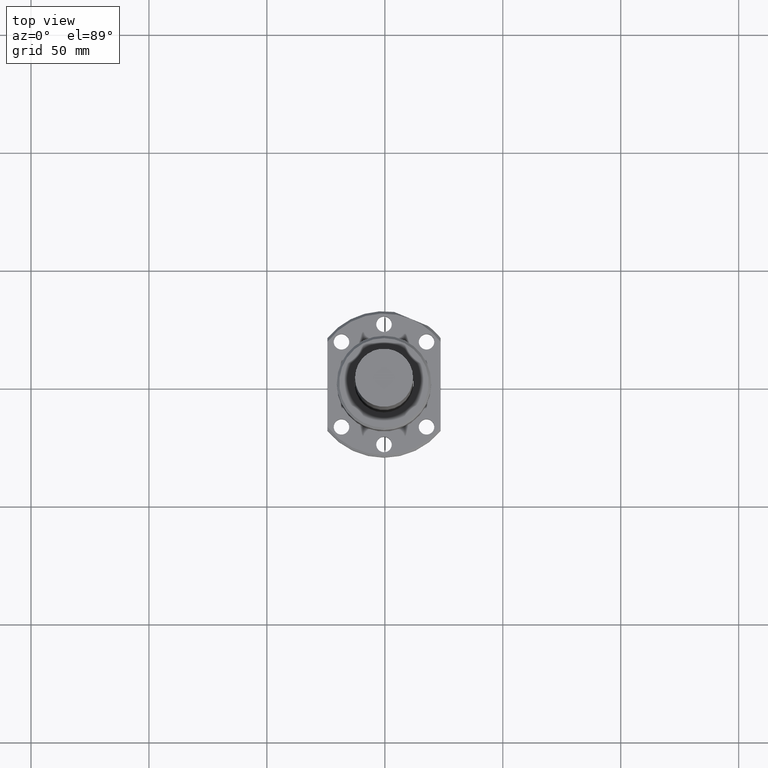
[diagram: clean part render]
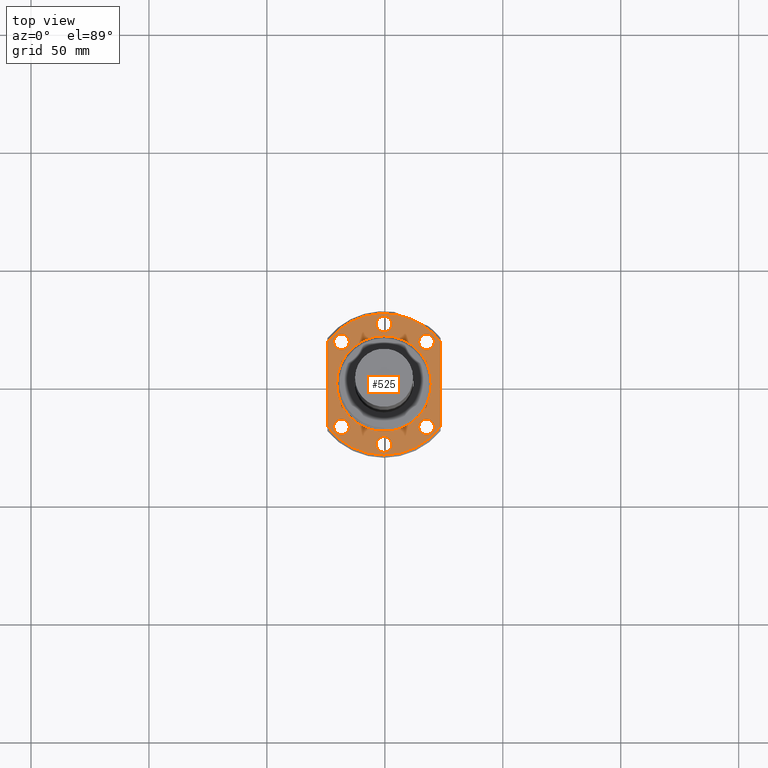
[diagram: same view with one face highlighted and labeled with its STEP entity id]
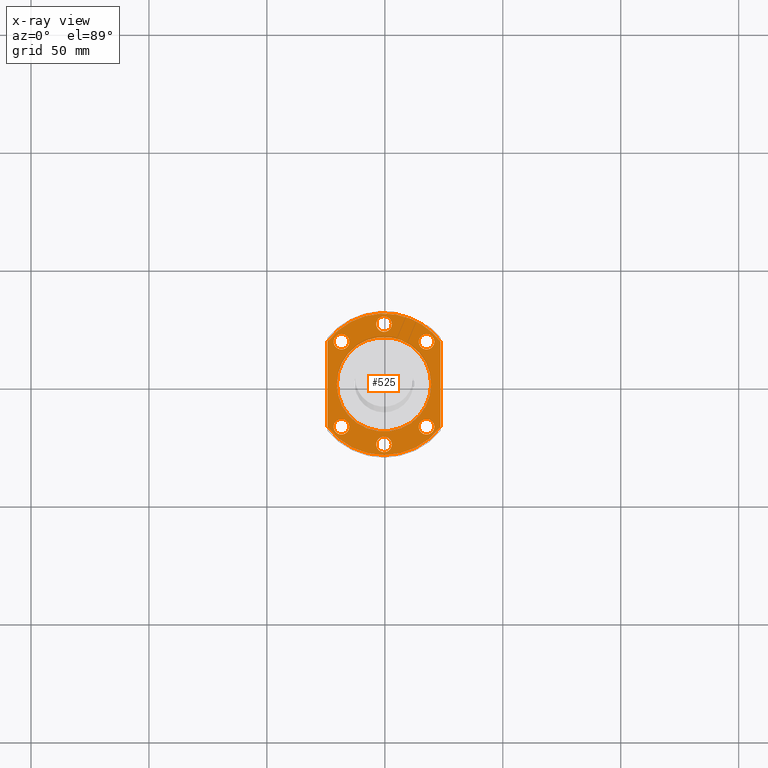
[diagram: x-ray of the same camera — body ghosted, the highlighted face saturated]
A machine part, top view. The second image highlights one B-rep face of the part: STEP entity #525.
The next image is the same camera in x-ray: the body ghosted, the highlighted face saturated — about 0% of this face is hidden behind the body in this view.
In plain terms, the highlighted planar face has unit normal (0, 0, -1).
Its self-contained STEP definition (entity closure, byte-faithful):
#17 = VERTEX_POINT ( 'NONE', #889 ) ;
#60 = EDGE_LOOP ( 'NONE', ( #1564, #922 ) ) ;
#104 = ORIENTED_EDGE ( 'NONE', *, *, #1741, .F. ) ;
#124 = VERTEX_POINT ( 'NONE', #697 ) ;
#133 = VERTEX_POINT ( 'NONE', #668 ) ;
#144 = CIRCLE ( 'NONE', #1759, 3.299987790000005200 ) ;
#148 = CIRCLE ( 'NONE', #165, 19.99999305000000000 ) ;
#153 = CIRCLE ( 'NONE', #1604, 3.299987789999999900 ) ;
#156 = DIRECTION ( 'NONE',  ( 1.000000000000000000, 0.0000000000000000000, 0.0000000000000000000 ) ) ;
#158 = DIRECTION ( 'NONE',  ( -0.0000000000000000000, 0.0000000000000000000, -1.000000000000000000 ) ) ;
#159 = CARTESIAN_POINT ( 'NONE',  ( 0.0000000000000000000, 0.0000000000000000000, -15.99999399999999700 ) ) ;
#165 = AXIS2_PLACEMENT_3D ( 'NONE', #831, #830, #829 ) ;
#180 = CIRCLE ( 'NONE', #1517, 3.299987790000000300 ) ;
#183 = AXIS2_PLACEMENT_3D ( 'NONE', #1646, #1645, #1642 ) ;
#196 = CIRCLE ( 'NONE', #931, 3.299987790000000300 ) ;
#198 = AXIS2_PLACEMENT_3D ( 'NONE', #1464, #1460, #1456 ) ;
#207 = VERTEX_POINT ( 'NONE', #564 ) ;
#235 = VERTEX_POINT ( 'NONE', #470 ) ;
#251 = CIRCLE ( 'NONE', #923, 3.299987790000005200 ) ;
#260 = CIRCLE ( 'NONE', #198, 3.300003049999999900 ) ;
#263 = CIRCLE ( 'NONE', #541, 29.99999980000003700 ) ;
#266 = FACE_BOUND ( 'NONE', #844, .T. ) ;
#276 = CIRCLE ( 'NONE', #1782, 29.99999980000003700 ) ;
#282 = ORIENTED_EDGE ( 'NONE', *, *, #1364, .F. ) ;
#294 = EDGE_CURVE ( 'NONE', #207, #133, #276, .T. ) ;
#320 = DIRECTION ( 'NONE',  ( 1.000000000000000000, 0.0000000000000000000, 0.0000000000000000000 ) ) ;
#331 = DIRECTION ( 'NONE',  ( -0.0000000000000000000, 0.0000000000000000000, -1.000000000000000000 ) ) ;
#347 = EDGE_LOOP ( 'NONE', ( #1138, #968 ) ) ;
#348 = AXIS2_PLACEMENT_3D ( 'NONE', #1425, #1424, #1412 ) ;
#367 = EDGE_CURVE ( 'NONE', #124, #1576, #1851, .T. ) ;
#368 = ORIENTED_EDGE ( 'NONE', *, *, #1535, .F. ) ;
#375 = EDGE_CURVE ( 'NONE', #133, #1576, #263, .T. ) ;
#389 = CARTESIAN_POINT ( 'NONE',  ( 0.0000000000000000000, 0.0000000000000000000, -15.99999399999996200 ) ) ;
#396 = EDGE_CURVE ( 'NONE', #834, #452, #251, .T. ) ;
#401 = EDGE_CURVE ( 'NONE', #207, #811, #1700, .T. ) ;
#418 = AXIS2_PLACEMENT_3D ( 'NONE', #1727, #1722, #1720 ) ;
#433 = FACE_BOUND ( 'NONE', #1436, .T. ) ;
#452 = VERTEX_POINT ( 'NONE', #1527 ) ;
#455 = ORIENTED_EDGE ( 'NONE', *, *, #613, .F. ) ;
#468 = VERTEX_POINT ( 'NONE', #1521 ) ;
#470 = CARTESIAN_POINT ( 'NONE',  ( 19.99999305000000000, 0.0000000000000000000, -15.99999399999999700 ) ) ;
#474 = VERTEX_POINT ( 'NONE', #1518 ) ;
#479 = CARTESIAN_POINT ( 'NONE',  ( 14.73124670999999900, 18.03121900000000000, -15.99999399999999700 ) ) ;
#497 = VECTOR ( 'NONE', #1838, 1000.000000000000000 ) ;
#501 = VERTEX_POINT ( 'NONE', #1485 ) ;
#506 = FACE_BOUND ( 'NONE', #900, .T. ) ;
#512 = EDGE_CURVE ( 'NONE', #824, #732, #260, .T. ) ;
#525 = ADVANCED_FACE ( 'NONE', ( #266, #433, #506, #582, #620, #701, #736, #779 ), #1430, .F. ) ;
#541 = AXIS2_PLACEMENT_3D ( 'NONE', #1807, #1804, #1800 ) ;
#554 = EDGE_CURVE ( 'NONE', #1638, #474, #196, .T. ) ;
#564 = CARTESIAN_POINT ( 'NONE',  ( -23.99999999999999600, 17.99999966666669600, -15.99999399999998300 ) ) ;
#582 = FACE_BOUND ( 'NONE', #583, .T. ) ;
#583 = EDGE_LOOP ( 'NONE', ( #682, #1422 ) ) ;
#613 = EDGE_CURVE ( 'NONE', #1647, #1127, #180, .T. ) ;
#620 = FACE_BOUND ( 'NONE', #1112, .T. ) ;
#668 = CARTESIAN_POINT ( 'NONE',  ( -11.48050294420043300, 27.71638587827104800, -15.99999389991637400 ) ) ;
#682 = ORIENTED_EDGE ( 'NONE', *, *, #554, .F. ) ;
#697 = CARTESIAN_POINT ( 'NONE',  ( 23.99999999999999600, -17.99999966778961600, -15.99999399932622700 ) ) ;
#701 = FACE_BOUND ( 'NONE', #60, .T. ) ;
#705 = CARTESIAN_POINT ( 'NONE',  ( 3.300002789999999700, 25.50000000000000400, -15.99999399999999700 ) ) ;
#726 = EDGE_CURVE ( 'NONE', #942, #17, #153, .T. ) ;
#732 = VERTEX_POINT ( 'NONE', #1026 ) ;
#736 = FACE_BOUND ( 'NONE', #347, .T. ) ;
#747 = ORIENTED_EDGE ( 'NONE', *, *, #294, .T. ) ;
#773 = EDGE_CURVE ( 'NONE', #468, #501, #144, .T. ) ;
#779 = FACE_OUTER_BOUND ( 'NONE', #1405, .T. ) ;
#792 = AXIS2_PLACEMENT_3D ( 'NONE', #1772, #1768, #1766 ) ;
#811 = VERTEX_POINT ( 'NONE', #914 ) ;
#824 = VERTEX_POINT ( 'NONE', #911 ) ;
#829 = DIRECTION ( 'NONE',  ( 1.000000000000000000, 0.0000000000000000000, 0.0000000000000000000 ) ) ;
#830 = DIRECTION ( 'NONE',  ( -0.0000000000000000000, 0.0000000000000000000, -1.000000000000000000 ) ) ;
#831 = CARTESIAN_POINT ( 'NONE',  ( 0.0000000000000000000, 0.0000000000000000000, -15.99999399999999700 ) ) ;
#834 = VERTEX_POINT ( 'NONE', #863 ) ;
#844 = EDGE_LOOP ( 'NONE', ( #282, #1531 ) ) ;
#850 = EDGE_CURVE ( 'NONE', #1540, #235, #148, .T. ) ;
#863 = CARTESIAN_POINT ( 'NONE',  ( -14.73121720999999900, -18.03122000000000100, -15.99999399999999700 ) ) ;
#868 = AXIS2_PLACEMENT_3D ( 'NONE', #1826, #1815, #1813 ) ;
#889 = CARTESIAN_POINT ( 'NONE',  ( -3.299972790000000000, 25.50000000000000400, -15.99999399999999700 ) ) ;
#900 = EDGE_LOOP ( 'NONE', ( #1407, #1409 ) ) ;
#911 = CARTESIAN_POINT ( 'NONE',  ( 3.300003049999999900, -25.50000000000000400, -15.99999399999999700 ) ) ;
#914 = CARTESIAN_POINT ( 'NONE',  ( -23.99999999999999600, -17.99999966666669200, -15.99999399999998300 ) ) ;
#921 = AXIS2_PLACEMENT_3D ( 'NONE', #1795, #1794, #1791 ) ;
#922 = ORIENTED_EDGE ( 'NONE', *, *, #1789, .F. ) ;
#923 = AXIS2_PLACEMENT_3D ( 'NONE', #1783, #1710, #1702 ) ;
#931 = AXIS2_PLACEMENT_3D ( 'NONE', #1388, #1338, #1335 ) ;
#942 = VERTEX_POINT ( 'NONE', #705 ) ;
#944 = DIRECTION ( 'NONE',  ( 1.000000000000000000, 0.0000000000000000000, 0.0000000000000000000 ) ) ;
#945 = DIRECTION ( 'NONE',  ( -0.0000000000000000000, 0.0000000000000000000, -1.000000000000000000 ) ) ;
#946 = AXIS2_PLACEMENT_3D ( 'NONE', #159, #158, #156 ) ;
#951 = CARTESIAN_POINT ( 'NONE',  ( -18.03120500000000300, 18.03121900000000000, -15.99999399999999700 ) ) ;
#968 = ORIENTED_EDGE ( 'NONE', *, *, #1818, .F. ) ;
#1015 = ORIENTED_EDGE ( 'NONE', *, *, #401, .F. ) ;
#1026 = CARTESIAN_POINT ( 'NONE',  ( -3.300003049999999900, -25.50000000000000400, -15.99999399999999700 ) ) ;
#1045 = DIRECTION ( 'NONE',  ( 1.000000000000000000, 0.0000000000000000000, 0.0000000000000000000 ) ) ;
#1048 = DIRECTION ( 'NONE',  ( -0.0000000000000000000, -0.0000000000000000000, -1.000000000000000000 ) ) ;
#1057 = CARTESIAN_POINT ( 'NONE',  ( 1.499999999991091800E-005, 25.50000000000000400, -15.99999399999999700 ) ) ;
#1068 = VECTOR ( 'NONE', #1684, 1000.000000000000000 ) ;
#1112 = EDGE_LOOP ( 'NONE', ( #455, #104 ) ) ;
#1126 = CIRCLE ( 'NONE', #1607, 3.299987790000005200 ) ;
#1127 = VERTEX_POINT ( 'NONE', #479 ) ;
#1138 = ORIENTED_EDGE ( 'NONE', *, *, #773, .F. ) ;
#1139 = ORIENTED_EDGE ( 'NONE', *, *, #1580, .F. ) ;
#1143 = CIRCLE ( 'NONE', #183, 3.299987790000000300 ) ;
#1153 = ORIENTED_EDGE ( 'NONE', *, *, #375, .T. ) ;
#1160 = CIRCLE ( 'NONE', #1788, 3.299987789999999900 ) ;
#1176 = CIRCLE ( 'NONE', #418, 29.99999980000003700 ) ;
#1249 = DIRECTION ( 'NONE',  ( 1.000000000000000000, 0.0000000000000000000, 0.0000000000000000000 ) ) ;
#1250 = DIRECTION ( 'NONE',  ( -0.0000000000000000000, 0.0000000000000000000, -1.000000000000000000 ) ) ;
#1278 = CARTESIAN_POINT ( 'NONE',  ( 18.03123450000000000, 18.03121900000000000, -15.99999399999999700 ) ) ;
#1287 = ORIENTED_EDGE ( 'NONE', *, *, #396, .F. ) ;
#1334 = CIRCLE ( 'NONE', #792, 3.299987790000000300 ) ;
#1335 = DIRECTION ( 'NONE',  ( 1.000000000000000000, 0.0000000000000000000, 0.0000000000000000000 ) ) ;
#1338 = DIRECTION ( 'NONE',  ( -0.0000000000000000000, 0.0000000000000000000, -1.000000000000000000 ) ) ;
#1343 = CIRCLE ( 'NONE', #921, 3.299987790000005200 ) ;
#1364 = EDGE_CURVE ( 'NONE', #235, #1540, #1515, .T. ) ;
#1366 = CIRCLE ( 'NONE', #868, 3.300003049999999900 ) ;
#1388 = CARTESIAN_POINT ( 'NONE',  ( 18.03123450000000000, -18.03122000000000100, -15.99999399999999700 ) ) ;
#1405 = EDGE_LOOP ( 'NONE', ( #1139, #1015, #747, #1153, #1453 ) ) ;
#1407 = ORIENTED_EDGE ( 'NONE', *, *, #512, .F. ) ;
#1409 = ORIENTED_EDGE ( 'NONE', *, *, #1514, .F. ) ;
#1412 = DIRECTION ( 'NONE',  ( 1.000000000000000000, 0.0000000000000000000, 0.0000000000000000000 ) ) ;
#1422 = ORIENTED_EDGE ( 'NONE', *, *, #1547, .F. ) ;
#1424 = DIRECTION ( 'NONE',  ( 0.0000000000000000000, 0.0000000000000000000, 1.000000000000000000 ) ) ;
#1425 = CARTESIAN_POINT ( 'NONE',  ( -24.00000000000000000, -30.35999979800000400, -15.99999399999999900 ) ) ;
#1430 = PLANE ( 'NONE',  #348 ) ;
#1436 = EDGE_LOOP ( 'NONE', ( #1287, #368 ) ) ;
#1453 = ORIENTED_EDGE ( 'NONE', *, *, #367, .F. ) ;
#1456 = DIRECTION ( 'NONE',  ( 1.000000000000000000, 0.0000000000000000000, 0.0000000000000000000 ) ) ;
#1460 = DIRECTION ( 'NONE',  ( -0.0000000000000000000, -0.0000000000000000000, -1.000000000000000000 ) ) ;
#1464 = CARTESIAN_POINT ( 'NONE',  ( 0.0000000000000000000, -25.50000000000000400, -15.99999399999999700 ) ) ;
#1485 = CARTESIAN_POINT ( 'NONE',  ( -21.33119279000001000, 18.03121900000000000, -15.99999399999999700 ) ) ;
#1514 = EDGE_CURVE ( 'NONE', #732, #824, #1366, .T. ) ;
#1515 = CIRCLE ( 'NONE', #946, 19.99999305000000000 ) ;
#1517 = AXIS2_PLACEMENT_3D ( 'NONE', #1278, #1250, #1249 ) ;
#1518 = CARTESIAN_POINT ( 'NONE',  ( 14.73124670999999900, -18.03122000000000100, -15.99999399999999700 ) ) ;
#1521 = CARTESIAN_POINT ( 'NONE',  ( -14.73121720999999900, 18.03121900000000000, -15.99999399999999700 ) ) ;
#1527 = CARTESIAN_POINT ( 'NONE',  ( -21.33119279000001000, -18.03122000000000100, -15.99999399999999700 ) ) ;
#1531 = ORIENTED_EDGE ( 'NONE', *, *, #850, .F. ) ;
#1535 = EDGE_CURVE ( 'NONE', #452, #834, #1343, .T. ) ;
#1540 = VERTEX_POINT ( 'NONE', #1784 ) ;
#1547 = EDGE_CURVE ( 'NONE', #474, #1638, #1334, .T. ) ;
#1564 = ORIENTED_EDGE ( 'NONE', *, *, #726, .F. ) ;
#1570 = DIRECTION ( 'NONE',  ( 1.000000000000000000, 0.0000000000000000000, 0.0000000000000000000 ) ) ;
#1572 = DIRECTION ( 'NONE',  ( -0.0000000000000000000, 0.0000000000000000000, -1.000000000000000000 ) ) ;
#1575 = CARTESIAN_POINT ( 'NONE',  ( -18.03120500000000300, 18.03121900000000000, -15.99999399999999700 ) ) ;
#1576 = VERTEX_POINT ( 'NONE', #1725 ) ;
#1580 = EDGE_CURVE ( 'NONE', #811, #124, #1176, .T. ) ;
#1602 = DIRECTION ( 'NONE',  ( 1.000000000000000000, 0.0000000000000000000, 0.0000000000000000000 ) ) ;
#1604 = AXIS2_PLACEMENT_3D ( 'NONE', #1057, #1048, #1045 ) ;
#1606 = DIRECTION ( 'NONE',  ( -0.0000000000000000000, -0.0000000000000000000, -1.000000000000000000 ) ) ;
#1607 = AXIS2_PLACEMENT_3D ( 'NONE', #1575, #1572, #1570 ) ;
#1609 = CARTESIAN_POINT ( 'NONE',  ( 1.499999999991091800E-005, 25.50000000000000400, -15.99999399999999700 ) ) ;
#1638 = VERTEX_POINT ( 'NONE', #1707 ) ;
#1642 = DIRECTION ( 'NONE',  ( 1.000000000000000000, 0.0000000000000000000, 0.0000000000000000000 ) ) ;
#1645 = DIRECTION ( 'NONE',  ( -0.0000000000000000000, 0.0000000000000000000, -1.000000000000000000 ) ) ;
#1646 = CARTESIAN_POINT ( 'NONE',  ( 18.03123450000000000, 18.03121900000000000, -15.99999399999999700 ) ) ;
#1647 = VERTEX_POINT ( 'NONE', #1705 ) ;
#1684 = DIRECTION ( 'NONE',  ( 0.0000000000000000000, -1.000000000000000000, 0.0000000000000000000 ) ) ;
#1694 = CARTESIAN_POINT ( 'NONE',  ( -24.00000000000000000, 0.0000000000000000000, -15.99999399999999900 ) ) ;
#1700 = LINE ( 'NONE', #1694, #1068 ) ;
#1702 = DIRECTION ( 'NONE',  ( 1.000000000000000000, 0.0000000000000000000, 0.0000000000000000000 ) ) ;
#1705 = CARTESIAN_POINT ( 'NONE',  ( 21.33122228999999900, 18.03121900000000000, -15.99999399999999700 ) ) ;
#1707 = CARTESIAN_POINT ( 'NONE',  ( 21.33122228999999900, -18.03122000000000100, -15.99999399999999700 ) ) ;
#1710 = DIRECTION ( 'NONE',  ( -0.0000000000000000000, 0.0000000000000000000, -1.000000000000000000 ) ) ;
#1720 = DIRECTION ( 'NONE',  ( 1.000000000000000000, 0.0000000000000000000, 0.0000000000000000000 ) ) ;
#1722 = DIRECTION ( 'NONE',  ( 0.0000000000000000000, -0.0000000000000000000, 1.000000000000000000 ) ) ;
#1725 = CARTESIAN_POINT ( 'NONE',  ( 24.00000000000000000, 17.99999966708705300, -15.99999399974776700 ) ) ;
#1727 = CARTESIAN_POINT ( 'NONE',  ( 0.0000000000000000000, 0.0000000000000000000, -15.99999399999996200 ) ) ;
#1741 = EDGE_CURVE ( 'NONE', #1127, #1647, #1143, .T. ) ;
#1759 = AXIS2_PLACEMENT_3D ( 'NONE', #951, #945, #944 ) ;
#1766 = DIRECTION ( 'NONE',  ( 1.000000000000000000, 0.0000000000000000000, 0.0000000000000000000 ) ) ;
#1768 = DIRECTION ( 'NONE',  ( -0.0000000000000000000, 0.0000000000000000000, -1.000000000000000000 ) ) ;
#1772 = CARTESIAN_POINT ( 'NONE',  ( 18.03123450000000000, -18.03122000000000100, -15.99999399999999700 ) ) ;
#1782 = AXIS2_PLACEMENT_3D ( 'NONE', #389, #331, #320 ) ;
#1783 = CARTESIAN_POINT ( 'NONE',  ( -18.03120500000000300, -18.03122000000000100, -15.99999399999999700 ) ) ;
#1784 = CARTESIAN_POINT ( 'NONE',  ( -19.99999305000000000, 2.449292747165181300E-015, -15.99999399999999700 ) ) ;
#1788 = AXIS2_PLACEMENT_3D ( 'NONE', #1609, #1606, #1602 ) ;
#1789 = EDGE_CURVE ( 'NONE', #17, #942, #1160, .T. ) ;
#1791 = DIRECTION ( 'NONE',  ( 1.000000000000000000, 0.0000000000000000000, 0.0000000000000000000 ) ) ;
#1794 = DIRECTION ( 'NONE',  ( -0.0000000000000000000, 0.0000000000000000000, -1.000000000000000000 ) ) ;
#1795 = CARTESIAN_POINT ( 'NONE',  ( -18.03120500000000300, -18.03122000000000100, -15.99999399999999700 ) ) ;
#1800 = DIRECTION ( 'NONE',  ( 1.000000000000000000, -1.776356839400250500E-015, 0.0000000000000000000 ) ) ;
#1804 = DIRECTION ( 'NONE',  ( -0.0000000000000000000, 0.0000000000000000000, -1.000000000000000000 ) ) ;
#1807 = CARTESIAN_POINT ( 'NONE',  ( 0.0000000000000000000, 0.0000000000000000000, -15.99999399999996200 ) ) ;
#1813 = DIRECTION ( 'NONE',  ( 1.000000000000000000, 0.0000000000000000000, 0.0000000000000000000 ) ) ;
#1815 = DIRECTION ( 'NONE',  ( -0.0000000000000000000, -0.0000000000000000000, -1.000000000000000000 ) ) ;
#1818 = EDGE_CURVE ( 'NONE', #501, #468, #1126, .T. ) ;
#1826 = CARTESIAN_POINT ( 'NONE',  ( 0.0000000000000000000, -25.50000000000000400, -15.99999399999999700 ) ) ;
#1838 = DIRECTION ( 'NONE',  ( 0.0000000000000000000, 1.000000000000000000, 0.0000000000000000000 ) ) ;
#1842 = CARTESIAN_POINT ( 'NONE',  ( 24.00000000000000000, 0.0000000000000000000, -15.99999399999999900 ) ) ;
#1851 = LINE ( 'NONE', #1842, #497 ) ;